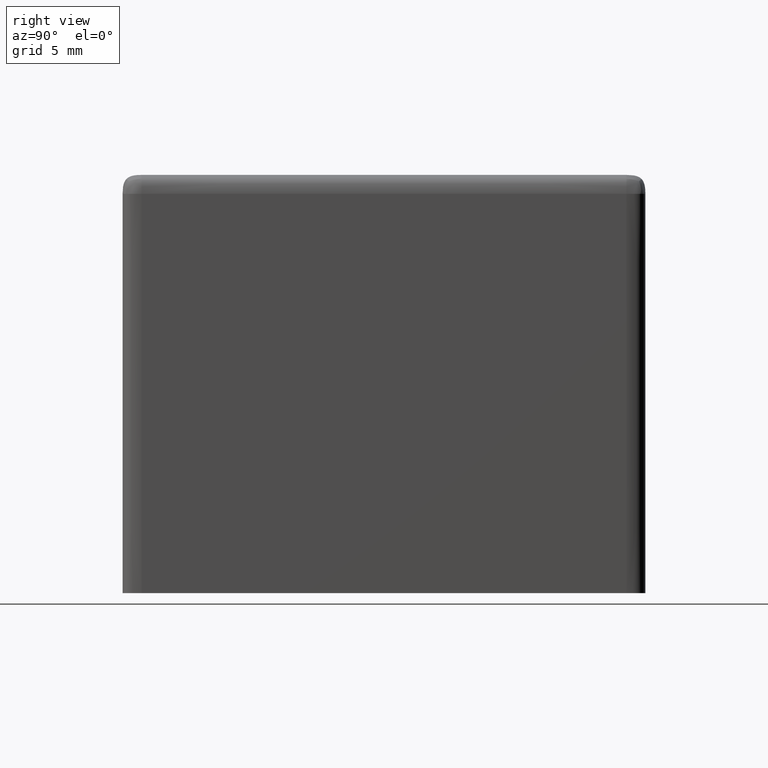
[diagram: clean part render]
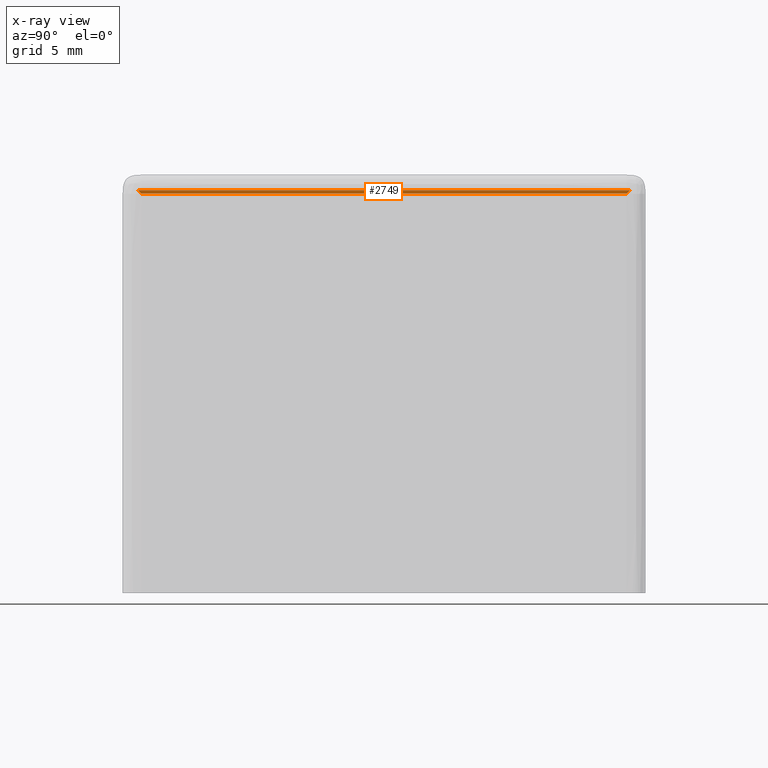
[diagram: x-ray — body ghosted, one internal face saturated and labeled with its STEP entity id]
A machine part, right view, then the same camera in x-ray: the body is ghosted and one INTERNAL B-rep face — a face not visible from any outside direction — is saturated and labeled: STEP entity #2749.
In plain terms, the highlighted face is a freeform B-spline surface patch.
Its self-contained STEP definition (entity closure, byte-faithful):
#22 = CARTESIAN_POINT ( 'NONE',  ( 0.8000000000000009300, 0.6523617192589766800, -1.000000000000000400 ) ) ;
#236 = CARTESIAN_POINT ( 'NONE',  ( 0.8000000000000009300, 18.11587942691367900, -1.000000000000000000 ) ) ;
#257 = CARTESIAN_POINT ( 'NONE',  ( 0.8000000000000009300, 26.84763828074104100, -0.9169087630632982700 ) ) ;
#269 = CARTESIAN_POINT ( 'NONE',  ( 0.8000000000000009300, 18.11587942691367900, -0.9169087630632982700 ) ) ;
#320 = VERTEX_POINT ( 'NONE', #1122 ) ;
#330 = ORIENTED_EDGE ( 'NONE', *, *, #1563, .F. ) ;
#346 = ORIENTED_EDGE ( 'NONE', *, *, #3044, .F. ) ;
#399 = VERTEX_POINT ( 'NONE', #2896 ) ;
#404 = ORIENTED_EDGE ( 'NONE', *, *, #2054, .T. ) ;
#504 = DIRECTION ( 'NONE',  ( 0.0000000000000000000, 1.000000000000000000, 0.0000000000000000000 ) ) ;
#547 = VECTOR ( 'NONE', #504, 1000.000000000000000 ) ;
#699 = CARTESIAN_POINT ( 'NONE',  ( 0.8000000000000000400, 0.9999999999999952300, -1.000000000000000000 ) ) ;
#765 = CARTESIAN_POINT ( 'NONE',  ( 0.8032597138084199800, 0.6523617192589769000, -0.8542922214696971900 ) ) ;
#783 = CARTESIAN_POINT ( 'NONE',  ( 0.8000000000000009300, 9.384120573086338600, -1.000000000000000400 ) ) ;
#845 = VERTEX_POINT ( 'NONE', #2932 ) ;
#855 = B_SPLINE_CURVE_WITH_KNOTS ( 'NONE', 3,
 ( #699, #957, #1452, #2700 ),
 .UNSPECIFIED., .F., .F.,
 ( 4, 4 ),
 ( 0.0000000000000000000, 1.000000000000000000 ),
 .UNSPECIFIED. ) ;
#946 = ORIENTED_EDGE ( 'NONE', *, *, #2663, .T. ) ;
#957 = CARTESIAN_POINT ( 'NONE',  ( 0.8000000000000009300, 9.500000000000012400, -1.000000000000000000 ) ) ;
#989 = CARTESIAN_POINT ( 'NONE',  ( 0.8000000000000000400, 26.49999999999999600, -1.000000000000001300 ) ) ;
#1122 = CARTESIAN_POINT ( 'NONE',  ( 0.8076696830622036600, 0.8076696830622023300, -0.8076696830622018800 ) ) ;
#1147 = CARTESIAN_POINT ( 'NONE',  ( 0.8076696830622494000, 26.69233031693780200, -0.8076696830622024400 ) ) ;
#1275 = CARTESIAN_POINT ( 'NONE',  ( 0.8000000000000009300, 26.84763828074104100, -1.000000000000000000 ) ) ;
#1443 = CARTESIAN_POINT ( 'NONE',  ( 0.8076696830622494000, 26.69233031693780200, -0.8076696830622024400 ) ) ;
#1446 = CARTESIAN_POINT ( 'NONE',  ( 0.8000000000000000400, 0.9999999999999952300, -1.000000000000000000 ) ) ;
#1448 = B_SPLINE_CURVE_WITH_KNOTS ( 'NONE', 3,
 ( #1446, #1979, #1468, #1936 ),
 .UNSPECIFIED., .F., .F.,
 ( 4, 4 ),
 ( -1.131371300125652300E-005, 0.0002608936801730565500 ),
 .UNSPECIFIED. ) ;
#1452 = CARTESIAN_POINT ( 'NONE',  ( 0.8000000000000009300, 17.99999999999999600, -0.9999999999999997800 ) ) ;
#1468 = CARTESIAN_POINT ( 'NONE',  ( 0.8016180525723454200, 0.8716479919130701900, -0.8716479919130736300 ) ) ;
#1524 = CARTESIAN_POINT ( 'NONE',  ( 0.8076696830622004400, 0.6523617192589769000, -0.8076696830622271900 ) ) ;
#1528 = LINE ( 'NONE', #2727, #547 ) ;
#1536 = CARTESIAN_POINT ( 'NONE',  ( 0.8000000000000009300, 0.6523617192589766800, -0.9169087630632986000 ) ) ;
#1563 = EDGE_CURVE ( 'NONE', #399, #320, #1448, .T. ) ;
#1582 = B_SPLINE_CURVE_WITH_KNOTS ( 'NONE', 3,
 ( #989, #2734, #2948, #1443 ),
 .UNSPECIFIED., .F., .F.,
 ( 4, 4 ),
 ( -1.131371300126342300E-005, 0.0002608936801730572000 ),
 .UNSPECIFIED. ) ;
#1688 = FACE_OUTER_BOUND ( 'NONE', #1740, .T. ) ;
#1740 = EDGE_LOOP ( 'NONE', ( #346, #330, #404, #946 ) ) ;
#1766 = CARTESIAN_POINT ( 'NONE',  ( 0.8076696830622004400, 9.384120573086340400, -0.8076696830622270800 ) ) ;
#1775 = CARTESIAN_POINT ( 'NONE',  ( 0.8032597138084199800, 18.11587942691368600, -0.8542922214696973000 ) ) ;
#1792 = B_SPLINE_SURFACE_WITH_KNOTS ( 'NONE', 3, 3, ( 
 ( #22, #783, #236, #1275 ),
 ( #1536, #2005, #269, #257 ),
 ( #765, #2505, #1775, #2755 ),
 ( #1524, #1766, #2016, #1801 ) ),
 .UNSPECIFIED., .F., .F., .F.,
 ( 4, 4 ),
 ( 4, 4 ),
 ( -1.341631739597954400E-015, 0.1101644570533486700 ),
 ( 0.0006523617192589742800, 0.02684763828074104200 ),
 .UNSPECIFIED. ) ;
#1801 = CARTESIAN_POINT ( 'NONE',  ( 0.8076696830622004400, 26.84763828074104800, -0.8076696830622271900 ) ) ;
#1936 = CARTESIAN_POINT ( 'NONE',  ( 0.8076696830622036600, 0.8076696830622023300, -0.8076696830622018800 ) ) ;
#1979 = CARTESIAN_POINT ( 'NONE',  ( 0.8000000000000009300, 0.9358400766004341100, -0.9358400765838578200 ) ) ;
#2005 = CARTESIAN_POINT ( 'NONE',  ( 0.8000000000000009300, 9.384120573086338600, -0.9169087630632986000 ) ) ;
#2016 = CARTESIAN_POINT ( 'NONE',  ( 0.8076696830622004400, 18.11587942691368600, -0.8076696830622271900 ) ) ;
#2054 = EDGE_CURVE ( 'NONE', #399, #845, #855, .T. ) ;
#2505 = CARTESIAN_POINT ( 'NONE',  ( 0.8032597138084199800, 9.384120573086340400, -0.8542922214696970800 ) ) ;
#2636 = VERTEX_POINT ( 'NONE', #1147 ) ;
#2663 = EDGE_CURVE ( 'NONE', #845, #2636, #1582, .T. ) ;
#2700 = CARTESIAN_POINT ( 'NONE',  ( 0.8000000000000000400, 26.49999999999999600, -1.000000000000001300 ) ) ;
#2727 = CARTESIAN_POINT ( 'NONE',  ( 0.8076696830622029900, 13.67903348633189300, -0.8076696830622021000 ) ) ;
#2734 = CARTESIAN_POINT ( 'NONE',  ( 0.8000000000000010400, 26.56415992341648300, -0.9358400766007815000 ) ) ;
#2749 = ADVANCED_FACE ( 'NONE', ( #1688 ), #1792, .F. ) ;
#2755 = CARTESIAN_POINT ( 'NONE',  ( 0.8032597138084199800, 26.84763828074104800, -0.8542922214696973000 ) ) ;
#2896 = CARTESIAN_POINT ( 'NONE',  ( 0.8000000000000000400, 0.9999999999999952300, -1.000000000000000000 ) ) ;
#2932 = CARTESIAN_POINT ( 'NONE',  ( 0.8000000000000000400, 26.49999999999999600, -1.000000000000001300 ) ) ;
#2948 = CARTESIAN_POINT ( 'NONE',  ( 0.8016180525723453100, 26.62835200808691700, -0.8716479919130718500 ) ) ;
#3044 = EDGE_CURVE ( 'NONE', #320, #2636, #1528, .T. ) ;